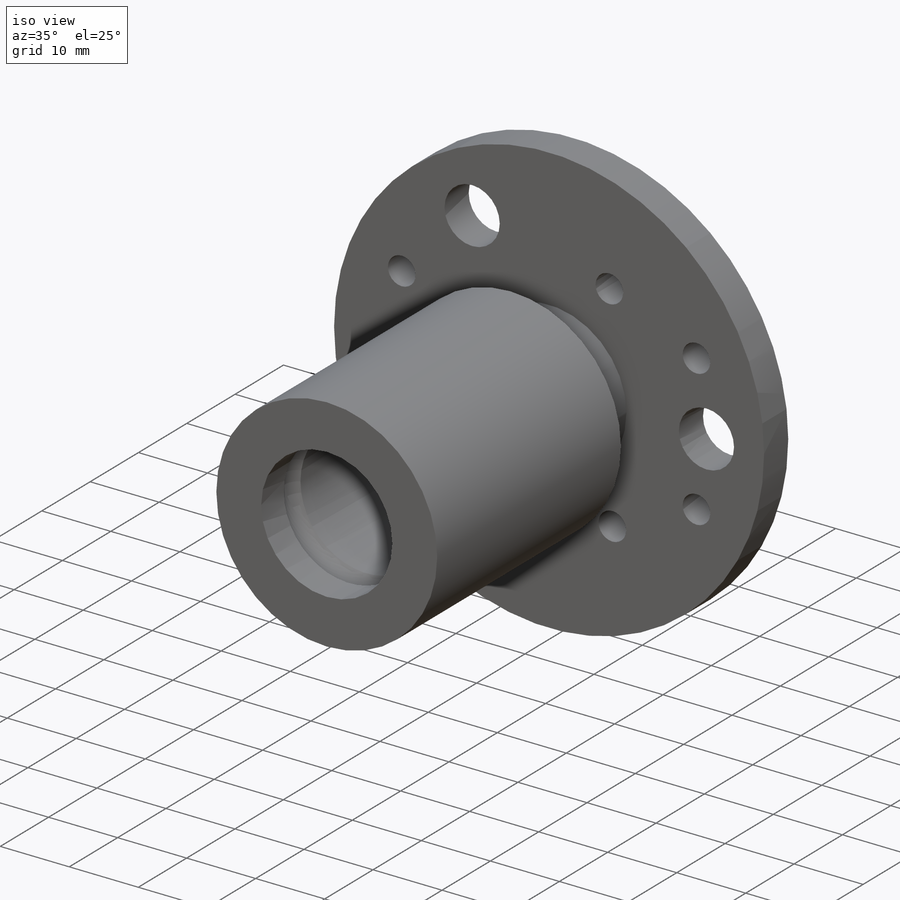
[diagram: iso view]
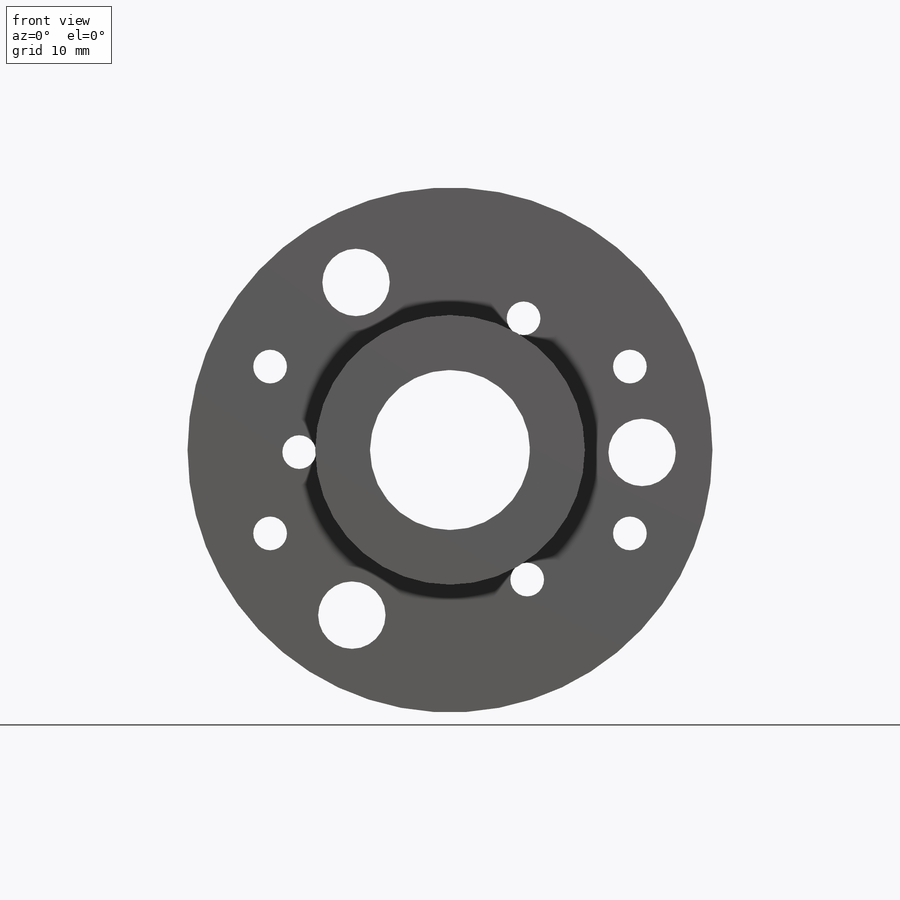
[diagram: front view]
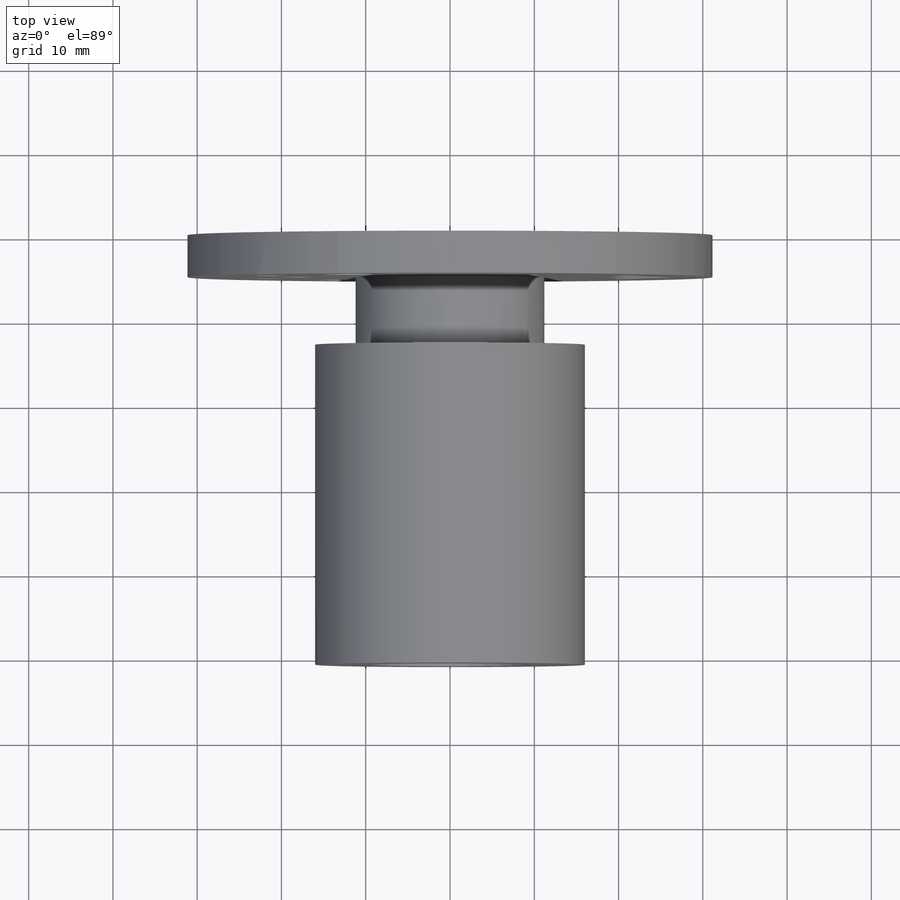
[diagram: top view]
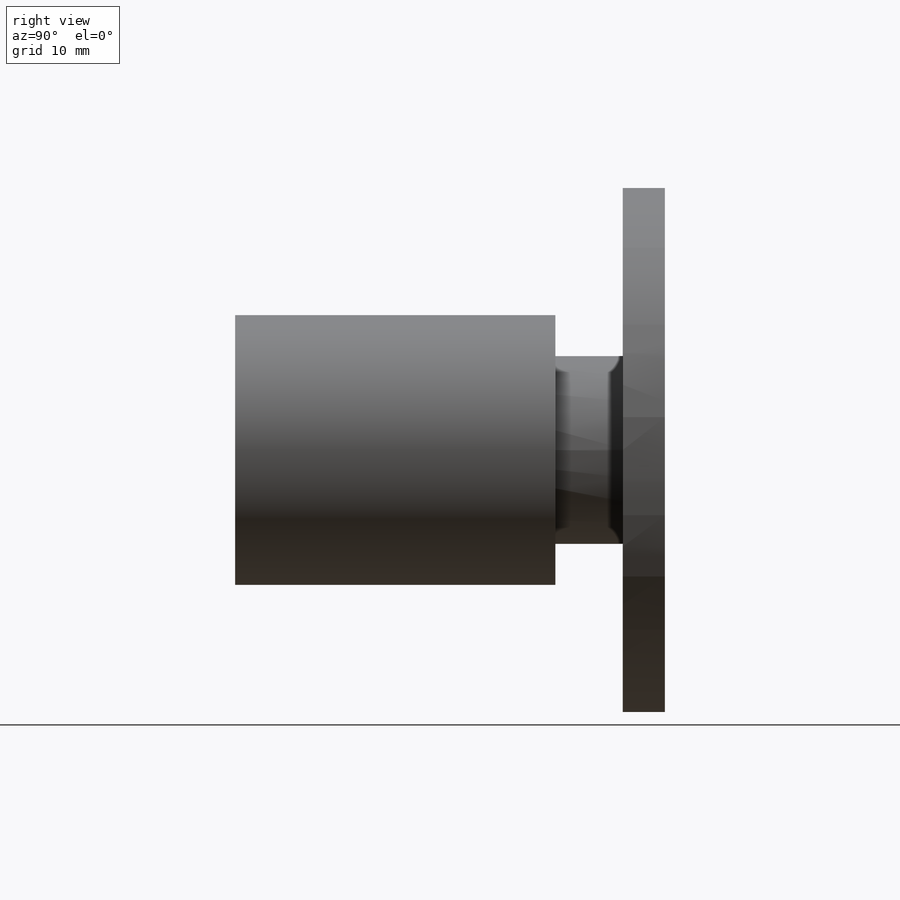
[diagram: right view]
SOLIDWORKS PART (.sldprt)
format: sldprt  version: not decoded by parser v0  size: 312,320 bytes
history: native  units: mm
features: sketch x7, extrude x3, cut_extrude x3, material x1, chamfer x1, cut_revolve x1, plane x1 (+11 scaffold rows collapsed)
feature tree (28):
  scaffold x11  (default folders/planes/origin — collapsed)
  material  "Alloy Steel"
  sketch  "Sketch1"  dims[D1=63.3mm]
  extrude  "Boss-Extrude1"  Depth=5mm
  chamfer  "Chamfer1"  Distance=0.5mm Angle=45deg
  sketch  "Sketch2"  dims[D1=22.4mm]
  extrude  "Boss-Extrude2"  Depth=8mm
  sketch  "Sketch3"  dims[D1=32.0mm D2=22.4mm]
  extrude  "Boss-Extrude3"  Depth=38mm
  sketch  "Sketch5"  dims[D1=19.0mm]
  cut_extrude  "Cut-Extrude2"  [1 undecoded]
  sketch  "Sketch6"  dims[c1.D3=~10.047728mm c1.D4=17.0mm c1.D8=~4.392515mm c1.D9=~4.230336mm c1.D1=42.7mm c1.D2=19.8mm c2.D3=39.2mm c2.D4=39.2mm c2.D5=39.2mm c2.D6=19.6mm c2.D7=~38.689797mm c3.D7=60.0deg c3.D4=22.3mm c3.D8=31.0mm c3.D9=~22.80001mm c3.D10=~22.80001mm c4.D9=~22.80001mm c4.D10=22.3mm c4.D3=3.0]
  cut_extrude  "Cut-Extrude3"  [1 undecoded]
  sketch  "Sketch7"  dims[c1.D6=1.0mm c1.D1=44.6mm c1.D2=19.0mm c1.D3=2.0mm c1.D4=9.5mm c1.D5=4.0mm c2.D4=2.0mm c2.D2=~5.053522mm c2.D3=8.5mm]
  cut_revolve  "Cut-Revolve3"  Angle=360deg
  plane  "Plane1"  Offset=44.6mm
  sketch  "Sketch8"  dims[D1=0.0mm]
  cut_extrude  "Cut-Extrude4"  Depth=10mm
decode coverage: 13 of 15 modeling features carry decoded parameters
note: ~ marks probable driven/reference dimensions
note: 2 parameter values undecoded
note: suppression state not decoded; provenance and decode notes live in map.json
